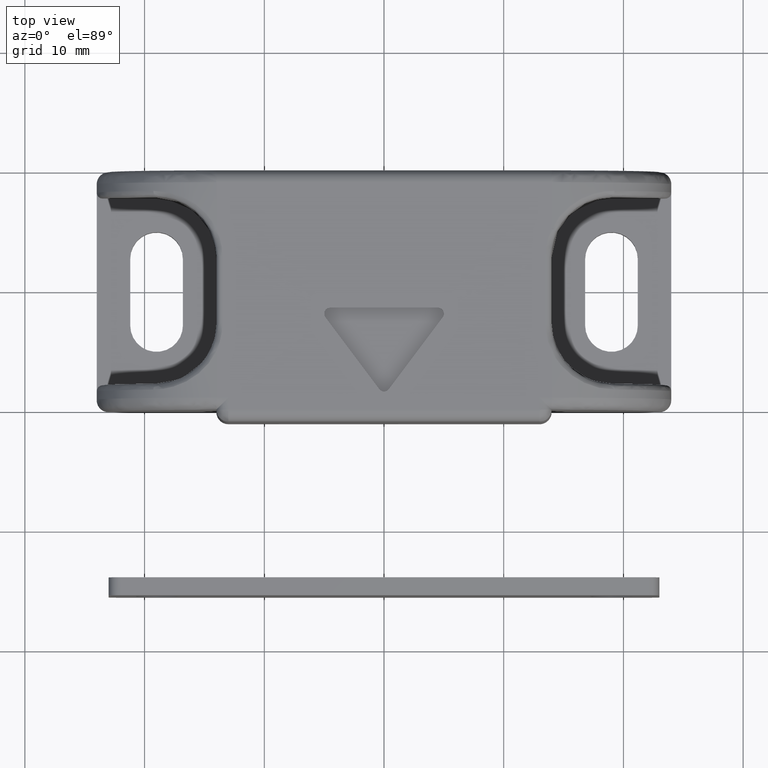
[diagram: clean part render]
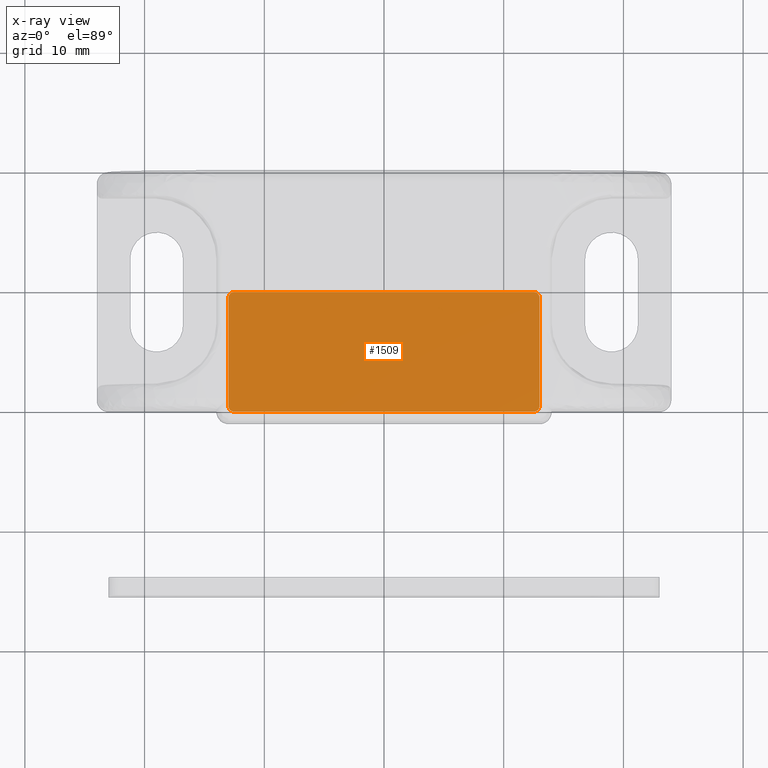
[diagram: x-ray — body ghosted, one internal face saturated and labeled with its STEP entity id]
A machine part, top view, then the same camera in x-ray: the body is ghosted and one INTERNAL B-rep face — a face not visible from any outside direction — is saturated and labeled: STEP entity #1509.
In plain terms, the highlighted face is a freeform B-spline surface patch.
Its self-contained STEP definition (entity closure, byte-faithful):
#1419=CARTESIAN_POINT('',(-14.298699949608499,-10.499499980672990,2.400000000000000));
#1420=CARTESIAN_POINT('',(14.298700647021660,-10.499499980672990,2.400000000000000));
#1421=CARTESIAN_POINT('',(-14.298699949608499,0.499500248893947,2.400000000000000));
#1422=CARTESIAN_POINT('',(14.298700647021660,0.499500248893947,2.400000000000000));
#1423=B_SPLINE_SURFACE_WITH_KNOTS('',1,1,((#1419,#1421),(#1420,#1422)),.UNSPECIFIED.,.F.,.F.,.U.,(2,2),(2,2),(0.0,28.597400596630159),(0.0,10.999000229566940),.UNSPECIFIED.);
#1424=CARTESIAN_POINT('',(13.000000000038460,-9.499999999947901,2.399999999999960));
#1425=VERTEX_POINT('',#1424);
#1426=CARTESIAN_POINT('',(12.500000000038460,-9.999999999950010,2.399999999999960));
#1427=VERTEX_POINT('',#1426);
#1428=CARTESIAN_POINT('',(13.000000000038460,-9.499999999947901,2.399999999999960));
#1429=CARTESIAN_POINT('',(13.000000000038462,-9.999999999950012,2.399999999999960));
#1430=CARTESIAN_POINT('',(12.500000000038460,-9.999999999950012,2.399999999999960));
#1438=(BOUNDED_CURVE()B_SPLINE_CURVE(2,(#1428,#1429,#1430),.UNSPECIFIED.,.F.,.U.)CURVE()GEOMETRIC_REPRESENTATION_ITEM()QUASI_UNIFORM_CURVE()RATIONAL_B_SPLINE_CURVE((1.0,0.707106781186548,1.0))REPRESENTATION_ITEM(''));
#1439=EDGE_CURVE('',#1425,#1427,#1438,.T.);
#1440=ORIENTED_EDGE('',*,*,#1439,.T.);
#1441=CARTESIAN_POINT('',(-12.499999999961560,-10.000000000049940,2.399999999999960));
#1442=VERTEX_POINT('',#1441);
#1443=CARTESIAN_POINT('',(12.500000000038460,-9.999999999950010,2.399999999999960));
#1444=CARTESIAN_POINT('',(-12.499999999961560,-10.000000000049940,2.399999999999960));
#1445=QUASI_UNIFORM_CURVE('',1,(#1443,#1444),.UNSPECIFIED.,.F.,.U.);
#1446=EDGE_CURVE('',#1427,#1442,#1445,.T.);
#1447=ORIENTED_EDGE('',*,*,#1446,.T.);
#1448=CARTESIAN_POINT('',(-12.999999999961560,-9.500000000049989,2.399999999999960));
#1449=VERTEX_POINT('',#1448);
#1450=CARTESIAN_POINT('',(-12.499999999961560,-10.000000000049940,2.399999999999960));
#1451=CARTESIAN_POINT('',(-12.999999999961560,-10.000000000049990,2.399999999999960));
#1452=CARTESIAN_POINT('',(-12.999999999961560,-9.500000000049989,2.399999999999960));
#1460=(BOUNDED_CURVE()B_SPLINE_CURVE(2,(#1450,#1451,#1452),.UNSPECIFIED.,.F.,.U.)CURVE()GEOMETRIC_REPRESENTATION_ITEM()QUASI_UNIFORM_CURVE()RATIONAL_B_SPLINE_CURVE((1.0,0.707106781186548,1.0))REPRESENTATION_ITEM(''));
#1461=EDGE_CURVE('',#1442,#1449,#1460,.T.);
#1462=ORIENTED_EDGE('',*,*,#1461,.T.);
#1463=CARTESIAN_POINT('',(-12.999999999999639,-0.500000000052097,2.399999999999960));
#1464=VERTEX_POINT('',#1463);
#1465=CARTESIAN_POINT('',(-12.999999999961560,-9.500000000049989,2.399999999999960));
#1466=CARTESIAN_POINT('',(-12.999999999999639,-0.500000000052097,2.399999999999960));
#1467=QUASI_UNIFORM_CURVE('',1,(#1465,#1466),.UNSPECIFIED.,.F.,.U.);
#1468=EDGE_CURVE('',#1449,#1464,#1467,.T.);
#1469=ORIENTED_EDGE('',*,*,#1468,.T.);
#1470=CARTESIAN_POINT('',(-12.499999999999661,-5.005063E-011,2.399999999999960));
#1471=VERTEX_POINT('',#1470);
#1472=CARTESIAN_POINT('',(-12.999999999999639,-0.500000000052097,2.399999999999960));
#1473=CARTESIAN_POINT('',(-13.000045821167189,-0.438634767958380,2.399999999999958));
#1474=CARTESIAN_POINT('',(-12.977134828042470,-0.315948371426153,2.399999999999961));
#1475=CARTESIAN_POINT('',(-12.881133911076960,-0.160078236380221,2.399999999999973));
#1476=CARTESIAN_POINT('',(-12.720737282451781,-0.034944670889626,2.399999999999940));
#1477=CARTESIAN_POINT('',(-12.581851242922131,0.000177898607278,2.399999999999966));
#1478=CARTESIAN_POINT('',(-12.499999999999661,-5.005063E-011,2.399999999999960));
#1479=B_SPLINE_CURVE_WITH_KNOTS('',3,(#1472,#1473,#1474,#1475,#1476,#1477,#1478),.UNSPECIFIED.,.F.,.U.,(4,1,1,1,4),(0.000000123592057,0.184081763443687,0.368176507065262,0.539972227227888,0.785417872192386),.UNSPECIFIED.);
#1480=EDGE_CURVE('',#1464,#1471,#1479,.T.);
#1481=ORIENTED_EDGE('',*,*,#1480,.T.);
#1482=CARTESIAN_POINT('',(12.499999999998360,4.999379E-011,2.399999999999960));
#1483=VERTEX_POINT('',#1482);
#1484=CARTESIAN_POINT('',(-12.499999999999661,-5.005063E-011,2.399999999999960));
#1485=CARTESIAN_POINT('',(12.499999999998360,4.999379E-011,2.399999999999960));
#1486=QUASI_UNIFORM_CURVE('',1,(#1484,#1485),.UNSPECIFIED.,.F.,.U.);
#1487=EDGE_CURVE('',#1471,#1483,#1486,.T.);
#1488=ORIENTED_EDGE('',*,*,#1487,.T.);
#1489=CARTESIAN_POINT('',(13.000000000000259,-0.499999999950120,2.399999999999960));
#1490=VERTEX_POINT('',#1489);
#1491=CARTESIAN_POINT('',(12.499999999998360,4.999379E-011,2.399999999999960));
#1492=CARTESIAN_POINT('',(12.561368552745710,0.000052577062862,2.399999999999960));
#1493=CARTESIAN_POINT('',(12.655411412890951,-0.017545969897894,2.399999999999958));
#1494=CARTESIAN_POINT('',(12.776565704249901,-0.078543398298054,2.399999999999963));
#1495=CARTESIAN_POINT('',(12.868959744419310,-0.154358321086701,2.399999999999958));
#1496=CARTESIAN_POINT('',(12.968146264139550,-0.291516665677147,2.399999999999968));
#1497=CARTESIAN_POINT('',(13.000181689918410,-0.418144014588359,2.399999999999954));
#1498=CARTESIAN_POINT('',(13.000000000000259,-0.499999999950120,2.399999999999960));
#1499=B_SPLINE_CURVE_WITH_KNOTS('',3,(#1491,#1492,#1493,#1494,#1495,#1496,#1497,#1498),.UNSPECIFIED.,.F.,.U.,(4,1,1,1,1,4),(0.000000123591669,0.184081763443367,0.282268418481715,0.404962797029520,0.539972227227612,0.785417872192270),.UNSPECIFIED.);
#1500=EDGE_CURVE('',#1483,#1490,#1499,.T.);
#1501=ORIENTED_EDGE('',*,*,#1500,.T.);
#1502=CARTESIAN_POINT('',(13.000000000000259,-0.499999999950120,2.399999999999960));
#1503=CARTESIAN_POINT('',(13.000000000038460,-9.499999999947901,2.399999999999960));
#1504=QUASI_UNIFORM_CURVE('',1,(#1502,#1503),.UNSPECIFIED.,.F.,.U.);
#1505=EDGE_CURVE('',#1490,#1425,#1504,.T.);
#1506=ORIENTED_EDGE('',*,*,#1505,.T.);
#1507=EDGE_LOOP('',(#1440,#1447,#1462,#1469,#1481,#1488,#1501,#1506));
#1508=FACE_OUTER_BOUND('',#1507,.T.);
#1509=ADVANCED_FACE('',(#1508),#1423,.F.);